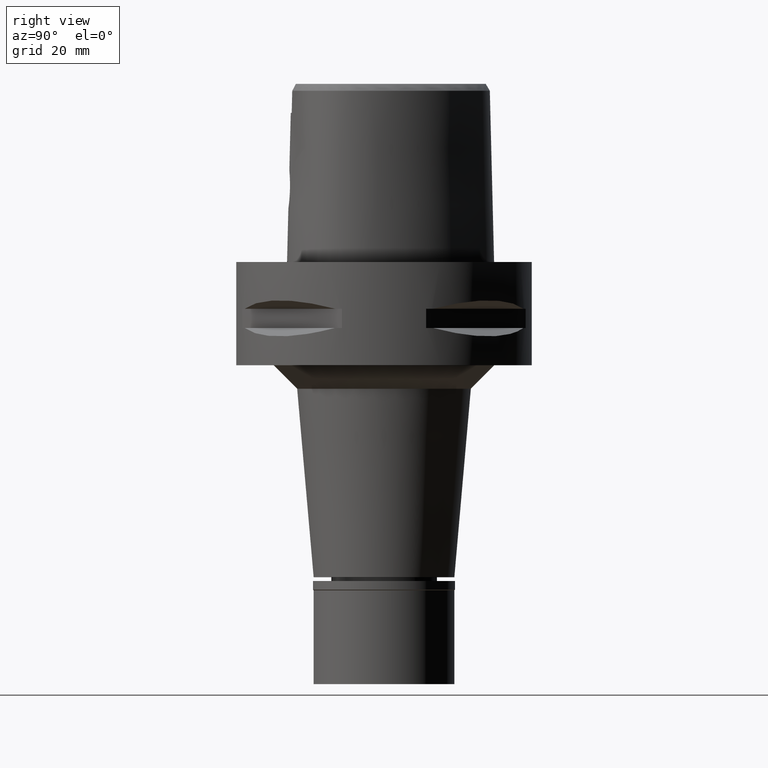
[diagram: clean part render]
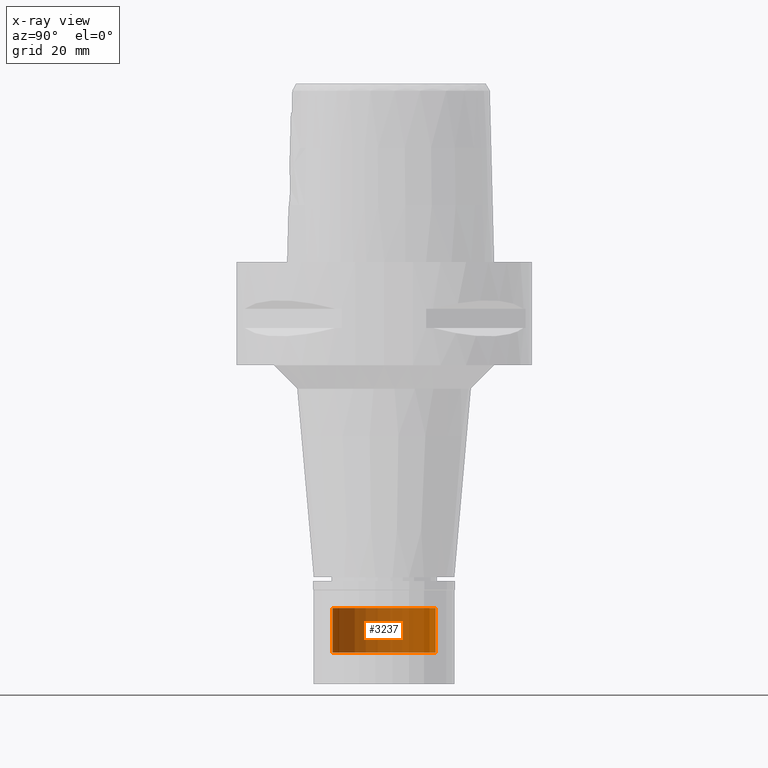
[diagram: x-ray — body ghosted, one internal face saturated and labeled with its STEP entity id]
A machine part, right view, then the same camera in x-ray: the body is ghosted and one INTERNAL B-rep face — a face not visible from any outside direction — is saturated and labeled: STEP entity #3237.
In plain terms, the highlighted cylindrical surface (partial cylindrical patch) has radius 11 mm, axis along (0, 0, -1).
Its self-contained STEP definition (entity closure, byte-faithful):
#115 = EDGE_CURVE ( 'NONE', #1368, #2808, #4809, .T. ) ;
#227 = DIRECTION ( 'NONE',  ( 0.0000000000000000000, 0.0000000000000000000, -1.000000000000000000 ) ) ;
#280 = DIRECTION ( 'NONE',  ( 0.0000000000000000000, -1.000000000000000000, 0.0000000000000000000 ) ) ;
#731 = CARTESIAN_POINT ( 'NONE',  ( 0.0000000000000000000, 11.00000000000000000, -73.80000000000001137 ) ) ;
#798 = DIRECTION ( 'NONE',  ( 0.0000000000000000000, 1.000000000000000000, 0.0000000000000000000 ) ) ;
#1136 = LINE ( 'NONE', #731, #3116 ) ;
#1156 = VERTEX_POINT ( 'NONE', #4486 ) ;
#1168 = AXIS2_PLACEMENT_3D ( 'NONE', #3099, #3506, #798 ) ;
#1337 = AXIS2_PLACEMENT_3D ( 'NONE', #1682, #227, #3582 ) ;
#1368 = VERTEX_POINT ( 'NONE', #3447 ) ;
#1586 = EDGE_CURVE ( 'NONE', #1156, #3677, #4571, .T. ) ;
#1644 = ORIENTED_EDGE ( 'NONE', *, *, #3198, .F. ) ;
#1682 = CARTESIAN_POINT ( 'NONE',  ( 0.0000000000000000000, 1.275653338331999844E-14, 4.165000000000000036 ) ) ;
#1912 = CARTESIAN_POINT ( 'NONE',  ( 0.0000000000000000000, -11.00000000000000000, -83.29999999999999716 ) ) ;
#2031 = FACE_OUTER_BOUND ( 'NONE', #4096, .T. ) ;
#2066 = VECTOR ( 'NONE', #2519, 1000.000000000000000 ) ;
#2125 = ORIENTED_EDGE ( 'NONE', *, *, #115, .T. ) ;
#2519 = DIRECTION ( 'NONE',  ( 0.0000000000000000000, 0.0000000000000000000, -1.000000000000000000 ) ) ;
#2603 = CARTESIAN_POINT ( 'NONE',  ( 0.0000000000000000000, 11.00000000000000000, -73.80000000000001137 ) ) ;
#2736 = ORIENTED_EDGE ( 'NONE', *, *, #1586, .T. ) ;
#2808 = VERTEX_POINT ( 'NONE', #2603 ) ;
#2877 = CARTESIAN_POINT ( 'NONE',  ( 0.0000000000000000000, -11.00000000000000000, -73.80000000000001137 ) ) ;
#2961 = CARTESIAN_POINT ( 'NONE',  ( 0.0000000000000000000, 1.275653338331999844E-14, -73.80000000000001137 ) ) ;
#3099 = CARTESIAN_POINT ( 'NONE',  ( 0.0000000000000000000, 1.275653338331999844E-14, -83.29999999999999716 ) ) ;
#3116 = VECTOR ( 'NONE', #3495, 1000.000000000000000 ) ;
#3198 = EDGE_CURVE ( 'NONE', #1368, #3677, #4078, .T. ) ;
#3237 = ADVANCED_FACE ( 'NONE', ( #2031 ), #4467, .T. ) ;
#3426 = AXIS2_PLACEMENT_3D ( 'NONE', #2961, #3725, #280 ) ;
#3447 = CARTESIAN_POINT ( 'NONE',  ( 0.0000000000000000000, -11.00000000000000000, -73.80000000000001137 ) ) ;
#3464 = ORIENTED_EDGE ( 'NONE', *, *, #4313, .T. ) ;
#3495 = DIRECTION ( 'NONE',  ( 0.0000000000000000000, 0.0000000000000000000, -1.000000000000000000 ) ) ;
#3506 = DIRECTION ( 'NONE',  ( 0.0000000000000000000, 0.0000000000000000000, 1.000000000000000000 ) ) ;
#3582 = DIRECTION ( 'NONE',  ( 0.0000000000000000000, -1.000000000000000000, 0.0000000000000000000 ) ) ;
#3677 = VERTEX_POINT ( 'NONE', #1912 ) ;
#3725 = DIRECTION ( 'NONE',  ( 0.0000000000000000000, 0.0000000000000000000, -1.000000000000000000 ) ) ;
#4078 = LINE ( 'NONE', #2877, #2066 ) ;
#4096 = EDGE_LOOP ( 'NONE', ( #2736, #1644, #2125, #3464 ) ) ;
#4313 = EDGE_CURVE ( 'NONE', #2808, #1156, #1136, .T. ) ;
#4467 = CYLINDRICAL_SURFACE ( 'NONE', #1337, 11.00000000000000000 ) ;
#4486 = CARTESIAN_POINT ( 'NONE',  ( 0.0000000000000000000, 11.00000000000000000, -83.29999999999999716 ) ) ;
#4571 = CIRCLE ( 'NONE', #1168, 11.00000000000000000 ) ;
#4809 = CIRCLE ( 'NONE', #3426, 11.00000000000000000 ) ;